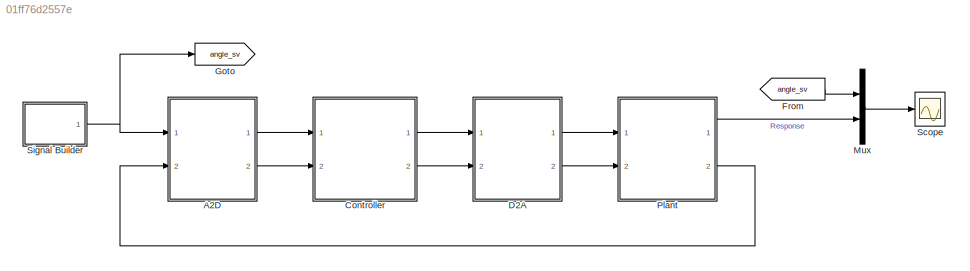
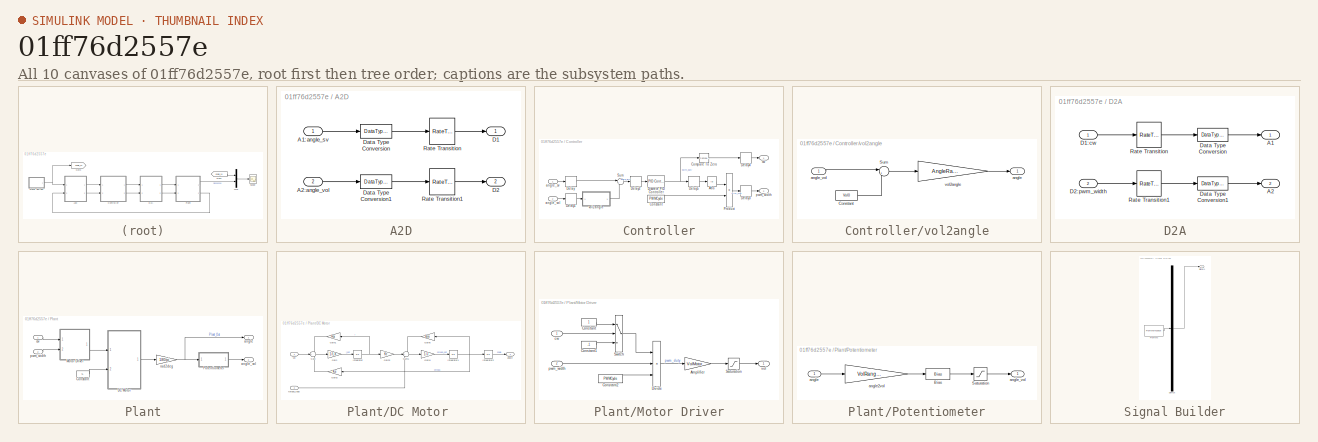
[diagram: thumbnail index - all 10 canvases of the model, root first then tree order]
MODEL slx_01ff76d2557e
KIND model
CONFIG PreLoadFcn = param_dcmotor
BLOCK [SubSystem] A2D
  Ports = [2, 2]
  RequestExecContextInheritance = off
BLOCK [Inport] A2D/A1:angle_sv
  IconDisplay = Port number
BLOCK [Inport] A2D/A2:angle_vol
  IconDisplay = Port number
  Port = 2
BLOCK [Outport] A2D/D1
  IconDisplay = Port number
BLOCK [Outport] A2D/D2
  IconDisplay = Port number
  Port = 2
BLOCK [DataTypeConversion] A2D/Data Type Conversion
  LockScale = on
  OutDataTypeStr = int16
  RndMeth = Floor
  SaturateOnIntegerOverflow = off
BLOCK [DataTypeConversion] A2D/Data Type Conversion1
  LockScale = on
  OutDataTypeStr = fixdt(0,16,10)
  RndMeth = Floor
  SaturateOnIntegerOverflow = off
BLOCK [RateTransition] A2D/Rate Transition
  Integrity = off
  OutPortSampleTime = Ts
BLOCK [RateTransition] A2D/Rate Transition1
  Integrity = off
  OutPortSampleTime = Ts
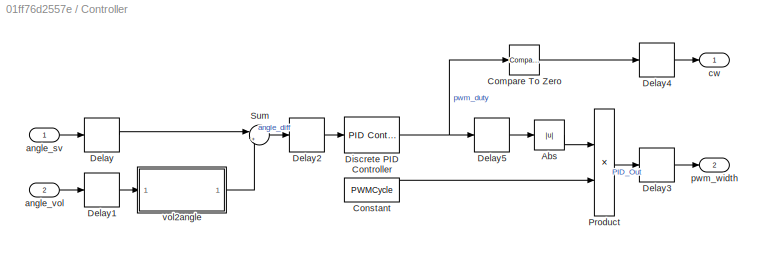
BLOCK [SubSystem] Controller
  Ports = [2, 2]
  RequestExecContextInheritance = off
  TreatAsAtomicUnit = on
BLOCK [Abs] Controller/Abs
  SaturateOnIntegerOverflow = off
BLOCK [Reference] Controller/Compare To Zero  REF=simulink/Logic and Bit
Operations/Compare
To Zero
  OutDataTypeStr = boolean
  Ports = [1, 1]
  SourceBlock = simulink/Logic and Bit\nOperations/Compare\nTo Zero
  SourceType = Compare To Zero
  ZeroCross = off
  relop = >=
BLOCK [Constant] Controller/Constant
  OutDataTypeStr = fixdt(0,14,0)
  OutMax = PWMCycle
  OutMin = PWMCycle
  Value = PWMCycle
BLOCK [Delay] Controller/Delay
  DelayLength = 1
  InputPortMap = u0
  Ports = [1, 1]
BLOCK [Delay] Controller/Delay1
  DelayLength = 1
  InputPortMap = u0
  Ports = [1, 1]
BLOCK [Delay] Controller/Delay2
  DelayLength = 1
  InputPortMap = u0
  Ports = [1, 1]
BLOCK [Delay] Controller/Delay3
  DelayLength = 1
  InputPortMap = u0
  Ports = [1, 1]
BLOCK [Delay] Controller/Delay4
  DelayLength = 1
  InputPortMap = u0
  Ports = [1, 1]
BLOCK [Delay] Controller/Delay5
  DelayLength = 1
  InputPortMap = u0
  Ports = [1, 1]
BLOCK [Reference] Controller/Discrete PID Controller  REF=simulink/Continuous/PID Controller
  AntiWindupMode = none
  Controller = PID
  D = KD
  DOutDataTypeStr = Inherit: Inherit via internal rule
  DOutMax = []
  DOutMin = []
  DParamDataTypeStr = fixdt(0,8,17)
  DParamMax = 0.001
  DParamMin = 0
  DifferentiatorICPrevScaledInput = 0
  DifferentiatorOutDataTypeStr = Inherit: Inherit via internal rule
  DifferentiatorOutMax = []
  DifferentiatorOutMin = []
  ExternalReset = none
  FilterContinuousStateAttributes = ''
  FilterMethod = Forward Euler
  FilterOutDataTypeStr = fixdt(1,29,20)
  FilterOutMax = []
  FilterOutMin = []
  FilterRTWStateStorageClass = Auto
  FilterStateMustResolveToSignalObject = off
  Form = Parallel
  I = KI
  IOutDataTypeStr = Inherit: Inherit via internal rule
  IOutMax = []
  IOutMin = []
  IParamDataTypeStr = fixdt(0,8,11)
  IParamMax = 0.1
  IParamMin = 0
  IgnoreLimit = off
  InitialConditionForFilter = 0
  InitialConditionForIntegrator = 0
  InitialConditionSource = internal
  IntegratorContinuousStateAttributes = ''
  IntegratorMethod = Forward Euler
  IntegratorOutDataTypeStr = fixdt(1,29,31)
  IntegratorOutMax = 0.1
  IntegratorOutMin = -0.1
  IntegratorRTWStateStorageClass = Auto
  IntegratorStateMustResolveToSignalObject = off
  Kb = 1
  KbOutDataTypeStr = Inherit: Inherit via internal rule
  KbOutMax = []
  KbOutMin = []
  KbParamDataTypeStr = Inherit: Inherit via internal rule
  KbParamMax = []
  KbParamMin = []
  Kt = 1
  KtOutDataTypeStr = Inherit: Inherit via internal rule
  KtOutMax = []
  KtOutMin = []
  KtParamDataTypeStr = Inherit: Inherit via internal rule
  KtParamMax = []
  KtParamMin = []
  LimitOutput = on
  LinearizeAsGain = off
  LockScale = off
  LowerSaturationLimit = -1
  N = FN
  NOutDataTypeStr = Inherit: Inherit via internal rule
  NOutMax = []
  NOutMin = []
  NParamDataTypeStr = fixdt(0,10,0)
  NParamMax = 620
  NParamMin = 0
  P = KP
  POutDataTypeStr = Inherit: Inherit via internal rule
  POutMax = []
  POutMin = []
  PParamDataTypeStr = fixdt(0,8,11)
  PParamMax = 0.1
  PParamMin = 0
  Ports = [1, 1]
  RndMeth = Floor
  SampleTime = -1
  SaturateOnIntegerOverflow = off
  SaturationOutDataTypeStr = Inherit: Same as input
  SaturationOutMax = []
  SaturationOutMin = []
  SourceBlock = simulink/Continuous/PID Controller
  SourceType = PID 1dof
  SumAccumDataTypeStr = Inherit: Inherit via internal rule
  SumDAccumDataTypeStr = Inherit: Inherit via internal rule
  SumDOutDataTypeStr = Inherit: Inherit via internal rule
  SumDOutMax = []
  SumDOutMin = []
  SumI1AccumDataTypeStr = Inherit: Inherit via internal rule
  SumI1OutDataTypeStr = Inherit: Inherit via internal rule
  SumI1OutMax = []
  SumI1OutMin = []
  SumI2AccumDataTypeStr = Inherit: Inherit via internal rule
  SumI2OutDataTypeStr = Inherit: Inherit via internal rule
  SumI2OutMax = []
  SumI2OutMin = []
  SumI3AccumDataTypeStr = Inherit: Inherit via internal rule
  SumI3OutDataTypeStr = Inherit: Inherit via internal rule
  SumI3OutMax = []
  SumI3OutMin = []
  SumOutDataTypeStr = Inherit: Same as first input
  SumOutMax = []
  SumOutMin = []
  TimeDomain = Discrete-time
  TrackingMode = off
  UpperSaturationLimit = 1
  UseFilter = on
  ZeroCross = on
BLOCK [Product] Controller/Product
  InputSameDT = off
  Ports = [2, 1]
  SaturateOnIntegerOverflow = off
BLOCK [Sum] Controller/Sum
  IconShape = round
  InputSameDT = off
  Inputs = |+-
  OutDataTypeStr = Inherit: Inherit via internal rule
  Ports = [2, 1]
  SaturateOnIntegerOverflow = off
BLOCK [Inport] Controller/angle_sv
  IconDisplay = Port number
  OutMax = 32767
  OutMin = -32768
BLOCK [Inport] Controller/angle_vol
  IconDisplay = Port number
  OutMax = 63.99
  OutMin = 0
  Port = 2
BLOCK [Outport] Controller/cw
  IconDisplay = Port number
BLOCK [Outport] Controller/pwm_width
  IconDisplay = Port number
  Port = 2
BLOCK [SubSystem] Controller/vol2angle
  Ports = [1, 1]
  RequestExecContextInheritance = off
BLOCK [Constant] Controller/vol2angle/Constant
  OutDataTypeStr = fixdt(0,3,1)
  Value = Vol0
BLOCK [Sum] Controller/vol2angle/Sum
  IconShape = round
  InputSameDT = off
  Inputs = |+-
  OutDataTypeStr = Inherit: Inherit via internal rule
  Ports = [2, 1]
  SaturateOnIntegerOverflow = off
BLOCK [Outport] Controller/vol2angle/angle
  IconDisplay = Port number
BLOCK [Inport] Controller/vol2angle/angle_vol
  IconDisplay = Port number
BLOCK [Gain] Controller/vol2angle/vol2angle
  Gain = AngleRange/VolRange
  OutDataTypeStr = fixdt(1,20,3)
  OutMax = (63.99-Vol0)*AngleRange/VolRange
  OutMin = Vol0*AngleRange/VolRange
  ParamDataTypeStr = Inherit: Inherit via internal rule
  SaturateOnIntegerOverflow = off
BLOCK [SubSystem] D2A
  Ports = [2, 2]
  RequestExecContextInheritance = off
BLOCK [Outport] D2A/A1
  IconDisplay = Port number
BLOCK [Outport] D2A/A2
  IconDisplay = Port number
  Port = 2
BLOCK [Inport] D2A/D1:cw
  IconDisplay = Port number
BLOCK [Inport] D2A/D2:pwm_width
  IconDisplay = Port number
  Port = 2
BLOCK [DataTypeConversion] D2A/Data Type Conversion
  OutDataTypeStr = double
  RndMeth = Floor
  SaturateOnIntegerOverflow = off
BLOCK [DataTypeConversion] D2A/Data Type Conversion1
  OutDataTypeStr = double
  RndMeth = Floor
  SaturateOnIntegerOverflow = off
BLOCK [RateTransition] D2A/Rate Transition
  Integrity = off
  OutPortSampleTime = 0
BLOCK [RateTransition] D2A/Rate Transition1
  Integrity = off
  OutPortSampleTime = 0
BLOCK [From] From
  GotoTag = angle_sv
BLOCK [Goto] Goto
  GotoTag = angle_sv
BLOCK [Mux] Mux
  DisplayOption = bar
  Inputs = 2
  Ports = [2, 1]
BLOCK [SubSystem] Plant
  Ports = [2, 2]
  RequestExecContextInheritance = off
BLOCK [Constant] Plant/Constant
  Value = TL
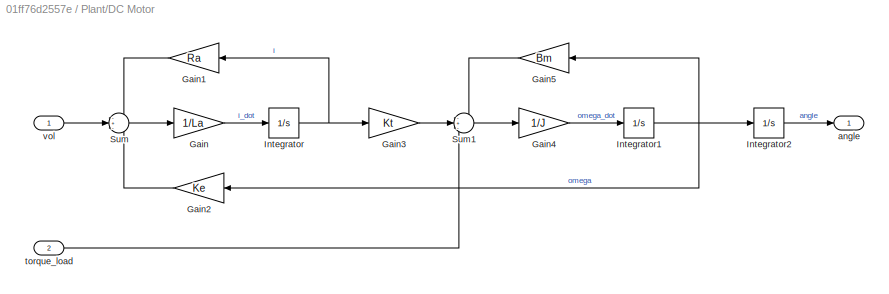
BLOCK [SubSystem] Plant/DC Motor 
  Ports = [2, 1]
  RequestExecContextInheritance = off
BLOCK [Gain] Plant/DC Motor /Gain
  Gain = 1/La
  OutDataTypeStr = Inherit: Inherit via internal rule
  ParamDataTypeStr = Inherit: Inherit via internal rule
  SaturateOnIntegerOverflow = off
BLOCK [Gain] Plant/DC Motor /Gain1
  Gain = Ra
  OutDataTypeStr = Inherit: Inherit via internal rule
  ParamDataTypeStr = Inherit: Inherit via internal rule
  SaturateOnIntegerOverflow = off
BLOCK [Gain] Plant/DC Motor /Gain2
  Gain = Ke
  OutDataTypeStr = Inherit: Inherit via internal rule
  ParamDataTypeStr = Inherit: Inherit via internal rule
  SaturateOnIntegerOverflow = off
BLOCK [Gain] Plant/DC Motor /Gain3
  Gain = Kt
  OutDataTypeStr = Inherit: Inherit via internal rule
  ParamDataTypeStr = Inherit: Inherit via internal rule
  SaturateOnIntegerOverflow = off
BLOCK [Gain] Plant/DC Motor /Gain4
  Gain = 1/J
  OutDataTypeStr = Inherit: Inherit via internal rule
  ParamDataTypeStr = Inherit: Inherit via internal rule
  SaturateOnIntegerOverflow = off
BLOCK [Gain] Plant/DC Motor /Gain5
  Gain = Bm
  OutDataTypeStr = Inherit: Inherit via internal rule
  ParamDataTypeStr = Inherit: Inherit via internal rule
  SaturateOnIntegerOverflow = off
BLOCK [Integrator] Plant/DC Motor /Integrator
  Ports = [1, 1]
BLOCK [Integrator] Plant/DC Motor /Integrator1
  Ports = [1, 1]
BLOCK [Integrator] Plant/DC Motor /Integrator2
  Ports = [1, 1]
BLOCK [Sum] Plant/DC Motor /Sum
  IconShape = round
  InputSameDT = off
  Inputs = -+-
  OutDataTypeStr = Inherit: Inherit via internal rule
  Ports = [3, 1]
  SaturateOnIntegerOverflow = off
BLOCK [Sum] Plant/DC Motor /Sum1
  IconShape = round
  InputSameDT = off
  Inputs = -+-
  OutDataTypeStr = Inherit: Inherit via internal rule
  Ports = [3, 1]
  SaturateOnIntegerOverflow = off
BLOCK [Outport] Plant/DC Motor /angle
  IconDisplay = Port number
BLOCK [Inport] Plant/DC Motor /torque_load
  IconDisplay = Port number
  Port = 2
BLOCK [Inport] Plant/DC Motor /vol
  IconDisplay = Port number
BLOCK [SubSystem] Plant/Motor Driver
  Ports = [2, 1]
  RequestExecContextInheritance = off
BLOCK [Gain] Plant/Motor Driver/Amplifier
  Gain = VolMotor
  OutDataTypeStr = Inherit: Inherit via internal rule
  ParamDataTypeStr = Inherit: Inherit via internal rule
  SaturateOnIntegerOverflow = off
BLOCK [Constant] Plant/Motor Driver/Constant
BLOCK [Constant] Plant/Motor Driver/Constant1
  Value = -1
BLOCK [Constant] Plant/Motor Driver/Constant2
  Value = PWMCycle
BLOCK [Product] Plant/Motor Driver/Divide
  InputSameDT = off
  Inputs = **/
  OutDataTypeStr = Inherit: Inherit via internal rule
  Ports = [3, 1]
  RndMeth = Floor
  SaturateOnIntegerOverflow = off
BLOCK [Saturate] Plant/Motor Driver/Saturation
  InputPortMap = u0
  LowerLimit = -VolMotor
  Ports = [1, 1]
  UpperLimit = VolMotor
BLOCK [Switch] Plant/Motor Driver/Switch
  Criteria = u2 ~= 0
  InputSameDT = off
  SaturateOnIntegerOverflow = off
BLOCK [Inport] Plant/Motor Driver/cw
  IconDisplay = Port number
BLOCK [Inport] Plant/Motor Driver/pwm_width
  IconDisplay = Port number
  Port = 2
BLOCK [Outport] Plant/Motor Driver/vol
  IconDisplay = Port number
BLOCK [SubSystem] Plant/Potentiometer
  Ports = [1, 1]
  RequestExecContextInheritance = off
BLOCK [Bias] Plant/Potentiometer/Bias
  Bias = Vol0
  SaturateOnIntegerOverflow = off
BLOCK [Saturate] Plant/Potentiometer/Saturation
  InputPortMap = u0
  LowerLimit = Vol0-VolRange/2
  Ports = [1, 1]
  UpperLimit = Vol0+VolRange/2
BLOCK [Inport] Plant/Potentiometer/angle
  IconDisplay = Port number
BLOCK [Gain] Plant/Potentiometer/angle2vol
  Gain = VolRange/AngleRange
  OutDataTypeStr = Inherit: Inherit via internal rule
  ParamDataTypeStr = Inherit: Inherit via internal rule
  SaturateOnIntegerOverflow = off
BLOCK [Outport] Plant/Potentiometer/angle_vol
  IconDisplay = Port number
BLOCK [Outport] Plant/angle
  IconDisplay = Port number
BLOCK [Outport] Plant/angle_vol
  IconDisplay = Port number
  Port = 2
BLOCK [Inport] Plant/cw
  IconDisplay = Port number
BLOCK [Inport] Plant/pwm_width
  IconDisplay = Port number
  Port = 2
BLOCK [Gain] Plant/rad2deg
  Gain = 180/pi
  OutDataTypeStr = Inherit: Inherit via internal rule
  ParamDataTypeStr = Inherit: Inherit via internal rule
  SaturateOnIntegerOverflow = off
BLOCK [Scope] Scope
  DataFormat = StructureWithTime
  Floating = off
  LimitDataPoints = off
  NumInputPorts = 1
  Ports = [1]
  SampleTime = 0
  ShowLegends = off
  YMax = 200
  YMin = -200
BLOCK [SubSystem] Signal Builder
  ClipboardFcn = sigbuilder_block('clipboard');
  CloseFcn = sigbuilder_block('close');
  ContinueFcn = sigbuilder_block('continue');
  CopyFcn = sigbuilder_block('copy');
  DeleteFcn = sigbuilder_block('delete');
  LoadFcn = sigbuilder_block('load');
  MaskHideContents = on
  ModelCloseFcn = sigbuilder_block('modelClose');
  NameChangeFcn = sigbuilder_block('namechange');
  OpenFcn = sigbuilder_block('open',[437.6 199.2 550.4 400 ]);
  PauseFcn = sigbuilder_block('pause');
  Ports = [0, 1]
  PreSaveFcn = sigbuilder_block('preSave');
  RequestExecContextInheritance = off
  StartFcn = sigbuilder_block('start');
  StopFcn = sigbuilder_block('stop');
  Tag = STV Subsys
BLOCK [Demux] Signal Builder/Demux
  Outputs = 1
  Ports = [1, 1]
  Tag = STV Demux
BLOCK [FromWorkspace] Signal Builder/FromWs
  SampleTime = 0
  Tag = STV FromWs
  VariableName = tuvar
  ZeroCross = on
BLOCK [Outport] Signal Builder/Signal 1
  IconDisplay = Port number
  Tag = STV Outport
LINE A2D/A1:angle_sv:1 -> A2D/Data Type Conversion:1
LINE A2D/A2:angle_vol:1 -> A2D/Data Type Conversion1:1
LINE A2D/Data Type Conversion1:1 -> A2D/Rate Transition1:1
LINE A2D/Data Type Conversion:1 -> A2D/Rate Transition:1
LINE A2D/Rate Transition1:1 -> A2D/D2:1
LINE A2D/Rate Transition:1 -> A2D/D1:1
LINE A2D:1 -> Controller:1
LINE A2D:2 -> Controller:2
LINE Controller/Abs:1 -> Controller/Product:1
LINE Controller/Compare To Zero:1 -> Controller/Delay4:1
LINE Controller/Constant:1 -> Controller/Product:2
LINE Controller/Delay1:1 -> Controller/vol2angle:1
LINE Controller/Delay2:1 -> Controller/Discrete PID Controller:1
LINE Controller/Delay3:1 -> Controller/pwm_width:1
LINE Controller/Delay4:1 -> Controller/cw:1
LINE Controller/Delay5:1 -> Controller/Abs:1
LINE Controller/Delay:1 -> Controller/Sum:1
NET Controller/Discrete PID Controller:1 -> Controller/Compare To Zero:1, Controller/Delay5:1
LINE Controller/Product:1 -> Controller/Delay3:1
LINE Controller/Sum:1 -> Controller/Delay2:1
LINE Controller/angle_sv:1 -> Controller/Delay:1
LINE Controller/angle_vol:1 -> Controller/Delay1:1
LINE Controller/vol2angle/Constant:1 -> Controller/vol2angle/Sum:2
LINE Controller/vol2angle/Sum:1 -> Controller/vol2angle/vol2angle:1
LINE Controller/vol2angle/angle_vol:1 -> Controller/vol2angle/Sum:1
LINE Controller/vol2angle/vol2angle:1 -> Controller/vol2angle/angle:1
LINE Controller/vol2angle:1 -> Controller/Sum:2
LINE Controller:1 -> D2A:1
LINE Controller:2 -> D2A:2
LINE D2A/D1:cw:1 -> D2A/Rate Transition:1
LINE D2A/D2:pwm_width:1 -> D2A/Rate Transition1:1
LINE D2A/Data Type Conversion1:1 -> D2A/A2:1
LINE D2A/Data Type Conversion:1 -> D2A/A1:1
LINE D2A/Rate Transition1:1 -> D2A/Data Type Conversion1:1
LINE D2A/Rate Transition:1 -> D2A/Data Type Conversion:1
LINE D2A:1 -> Plant:1
LINE D2A:2 -> Plant:2
LINE From:1 -> Mux:1
LINE Mux:1 -> Scope:1
LINE Plant/Constant:1 -> Plant/DC Motor :2
LINE Plant/DC Motor /Gain1:1 -> Plant/DC Motor /Sum:1
LINE Plant/DC Motor /Gain2:1 -> Plant/DC Motor /Sum:3
LINE Plant/DC Motor /Gain3:1 -> Plant/DC Motor /Sum1:2
LINE Plant/DC Motor /Gain4:1 -> Plant/DC Motor /Integrator1:1
LINE Plant/DC Motor /Gain5:1 -> Plant/DC Motor /Sum1:1
LINE Plant/DC Motor /Gain:1 -> Plant/DC Motor /Integrator:1
NET Plant/DC Motor /Integrator1:1 -> Plant/DC Motor /Gain2:1, Plant/DC Motor /Gain5:1, Plant/DC Motor /Integrator2:1
LINE Plant/DC Motor /Integrator2:1 -> Plant/DC Motor /angle:1
NET Plant/DC Motor /Integrator:1 -> Plant/DC Motor /Gain1:1, Plant/DC Motor /Gain3:1
LINE Plant/DC Motor /Sum1:1 -> Plant/DC Motor /Gain4:1
LINE Plant/DC Motor /Sum:1 -> Plant/DC Motor /Gain:1
LINE Plant/DC Motor /torque_load:1 -> Plant/DC Motor /Sum1:3
LINE Plant/DC Motor /vol:1 -> Plant/DC Motor /Sum:2
LINE Plant/DC Motor :1 -> Plant/rad2deg:1
LINE Plant/Motor Driver/Amplifier:1 -> Plant/Motor Driver/Saturation:1
LINE Plant/Motor Driver/Constant1:1 -> Plant/Motor Driver/Switch:3
LINE Plant/Motor Driver/Constant2:1 -> Plant/Motor Driver/Divide:3
LINE Plant/Motor Driver/Constant:1 -> Plant/Motor Driver/Switch:1
LINE Plant/Motor Driver/Divide:1 -> Plant/Motor Driver/Amplifier:1
LINE Plant/Motor Driver/Saturation:1 -> Plant/Motor Driver/vol:1
LINE Plant/Motor Driver/Switch:1 -> Plant/Motor Driver/Divide:1
LINE Plant/Motor Driver/cw:1 -> Plant/Motor Driver/Switch:2
LINE Plant/Motor Driver/pwm_width:1 -> Plant/Motor Driver/Divide:2
LINE Plant/Motor Driver:1 -> Plant/DC Motor :1
LINE Plant/Potentiometer/Bias:1 -> Plant/Potentiometer/Saturation:1
LINE Plant/Potentiometer/Saturation:1 -> Plant/Potentiometer/angle_vol:1
LINE Plant/Potentiometer/angle2vol:1 -> Plant/Potentiometer/Bias:1
LINE Plant/Potentiometer/angle:1 -> Plant/Potentiometer/angle2vol:1
LINE Plant/Potentiometer:1 -> Plant/angle_vol:1
LINE Plant/cw:1 -> Plant/Motor Driver:1
LINE Plant/pwm_width:1 -> Plant/Motor Driver:2
NET Plant/rad2deg:1 -> Plant/Potentiometer:1, Plant/angle:1
LINE Plant:1 -> Mux:2
LINE Plant:2 -> A2D:2
NET Signal Builder:1 -> A2D:1, Goto:1
note: NET lines group one-source signal fan-out (src -> all destinations, sorted); 1:1 wires keep LINE
